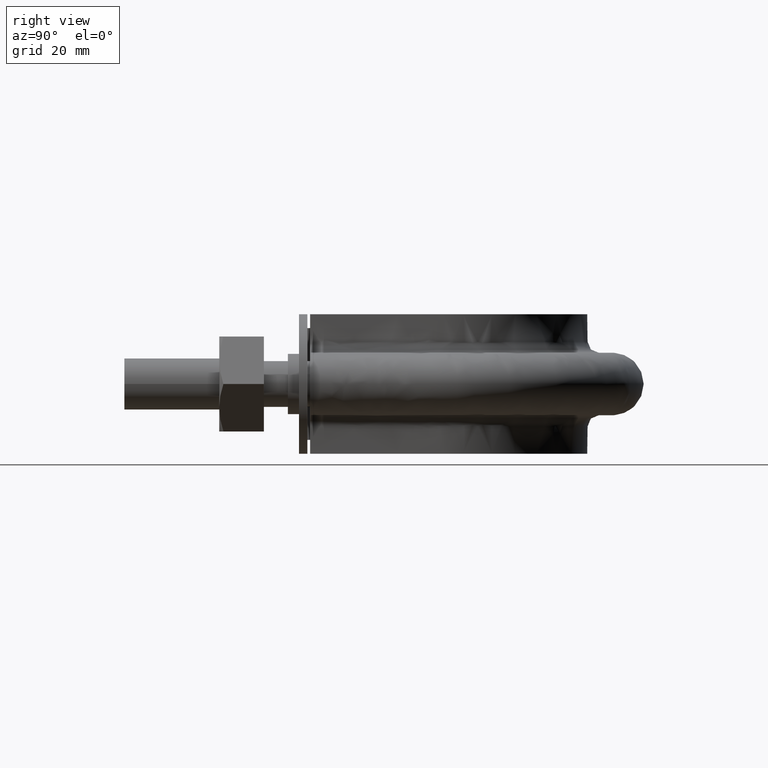
[diagram: clean part render]
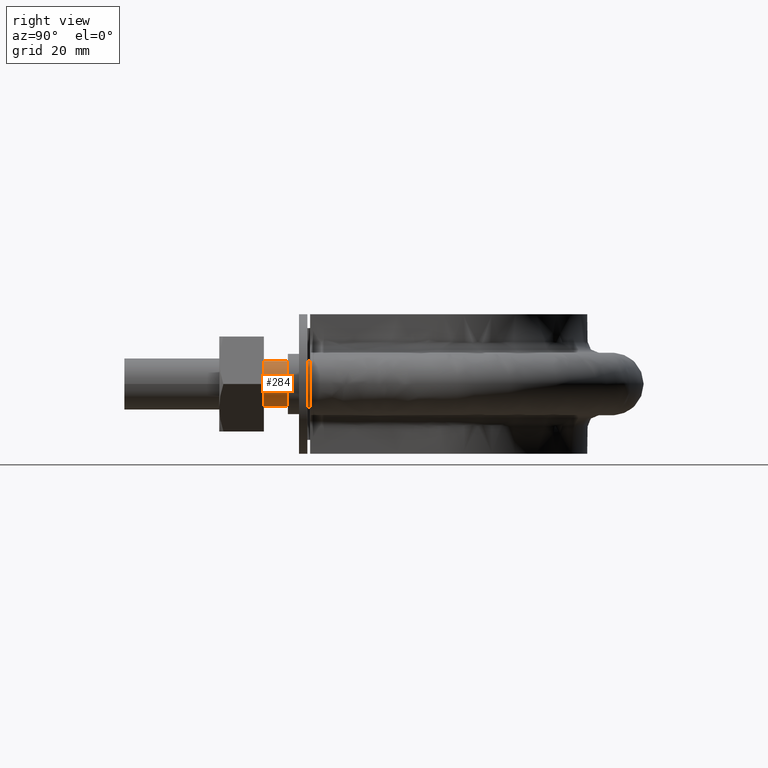
[diagram: same view with one face highlighted and labeled with its STEP entity id]
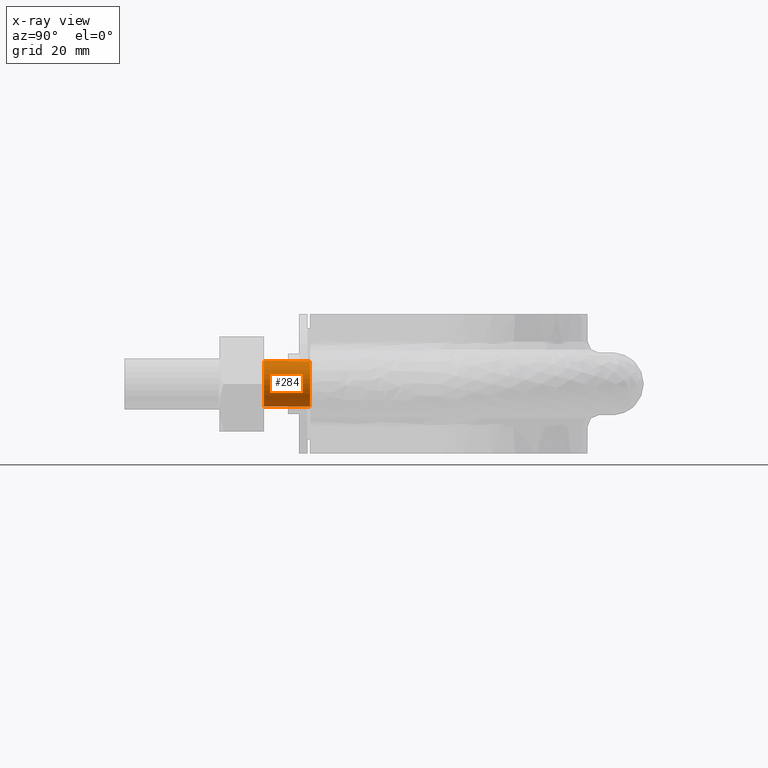
[diagram: x-ray of the same camera — body ghosted, the highlighted face saturated]
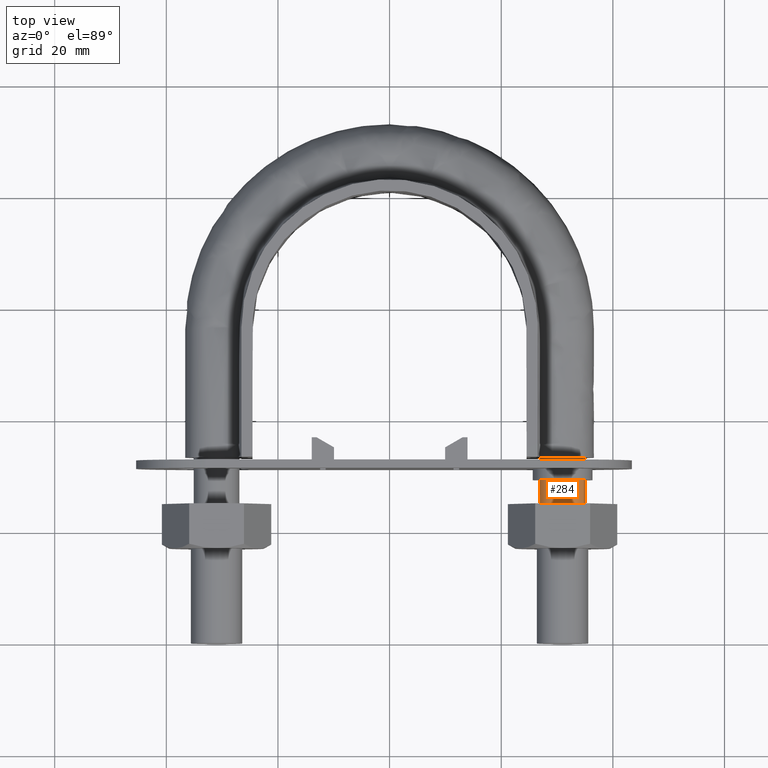
[diagram: same view with one face highlighted and labeled with its STEP entity id]
A machine part, right view. The second image highlights one B-rep face of the part: STEP entity #284.
The next image is the same camera in x-ray: the body ghosted, the highlighted face saturated — about 0% of this face is hidden behind the body in this view.
A second angle (top view) of the same face is appended — the face is thin or edge-on in the first view.
In plain terms, the highlighted cylindrical surface (bore or boss wall) has radius 4.1 mm, axis along (0, 1, 0).
Its self-contained STEP definition (entity closure, byte-faithful):
#284 = ADVANCED_FACE( '', ( #420, #421 ), #422, .T. );
#420 = FACE_OUTER_BOUND( '', #1498, .T. );
#421 = FACE_OUTER_BOUND( '', #1499, .T. );
#422 = CYLINDRICAL_SURFACE( '', #1500, 4.10000000000000 );
#1498 = EDGE_LOOP( '', ( #1832, #1833, #1834, #1835, #1836, #1837, #1838 ) );
#1499 = EDGE_LOOP( '', ( #1839 ) );
#1500 = AXIS2_PLACEMENT_3D( '', #1840, #1841, #1842 );
#1832 = ORIENTED_EDGE( '', *, *, #2558, .T. );
#1833 = ORIENTED_EDGE( '', *, *, #2559, .T. );
#1834 = ORIENTED_EDGE( '', *, *, #2560, .T. );
#1835 = ORIENTED_EDGE( '', *, *, #2539, .T. );
#1836 = ORIENTED_EDGE( '', *, *, #2556, .T. );
#1837 = ORIENTED_EDGE( '', *, *, #2561, .T. );
#1838 = ORIENTED_EDGE( '', *, *, #2562, .T. );
#1839 = ORIENTED_EDGE( '', *, *, #2563, .T. );
#1840 = CARTESIAN_POINT( '', ( 31.0000000000000, 33.3000000000000, 1.03938464280674E-014 ) );
#1841 = DIRECTION( '', ( 2.44921270764475E-016, 1.00000000000000, 3.06151588455594E-016 ) );
#1842 = DIRECTION( '', ( 1.00000000000000, -2.44921270764475E-016, -3.74915180455534E-032 ) );
#2539 = EDGE_CURVE( '', #2791, #2792, #2793, .T. );
#2556 = EDGE_CURVE( '', #2792, #2810, #2817, .T. );
#2558 = EDGE_CURVE( '', #2806, #2804, #2820, .T. );
#2559 = EDGE_CURVE( '', #2804, #2802, #2821, .T. );
#2560 = EDGE_CURVE( '', #2802, #2791, #2822, .T. );
#2561 = EDGE_CURVE( '', #2810, #2808, #2823, .T. );
#2562 = EDGE_CURVE( '', #2808, #2806, #2824, .T. );
#2563 = EDGE_CURVE( '', #2825, #2825, #2826, .T. );
#2791 = VERTEX_POINT( '', #3377 );
#2792 = VERTEX_POINT( '', #3378 );
#2793 = CIRCLE( '', #3379, 4.10000000000000 );
#2802 = VERTEX_POINT( '', #3412 );
#2804 = VERTEX_POINT( '', #3417 );
#2806 = VERTEX_POINT( '', #3422 );
#2808 = VERTEX_POINT( '', #3427 );
#2810 = VERTEX_POINT( '', #3432 );
#2817 = CIRCLE( '', #3445, 4.10000000000000 );
#2820 = CIRCLE( '', #3448, 4.10000000000000 );
#2821 = CIRCLE( '', #3449, 4.10000000000000 );
#2822 = CIRCLE( '', #3450, 4.10000000000000 );
#2823 = CIRCLE( '', #3451, 4.10000000000000 );
#2824 = CIRCLE( '', #3452, 4.10000000000000 );
#2825 = VERTEX_POINT( '', #3453 );
#2826 = CIRCLE( '', #3454, 4.10000000000000 );
#3377 = CARTESIAN_POINT( '', ( 26.9000000000000, 33.3000000000000, -2.95212466993632E-013 ) );
#3378 = CARTESIAN_POINT( '', ( 28.4436918123816, 33.3000000000000, -3.20550907812087 ) );
#3379 = AXIS2_PLACEMENT_3D( '', #4023, #4024, #4025 );
#3412 = CARTESIAN_POINT( '', ( 28.4436918123793, 33.3000000000000, 3.20550907811897 ) );
#3417 = CARTESIAN_POINT( '', ( 31.9123358292210, 33.3000000000000, 3.99720443994545 ) );
#3422 = CARTESIAN_POINT( '', ( 34.6939723584001, 33.3000000000000, 1.77892333038165 ) );
#3427 = CARTESIAN_POINT( '', ( 34.6939723583997, 33.3000000000000, -1.77892333038239 ) );
#3432 = CARTESIAN_POINT( '', ( 31.9123358292213, 33.3000000000000, -3.99720443994539 ) );
#3445 = AXIS2_PLACEMENT_3D( '', #4032, #4033, #4034 );
#3448 = AXIS2_PLACEMENT_3D( '', #4038, #4039, #4040 );
#3449 = AXIS2_PLACEMENT_3D( '', #4041, #4042, #4043 );
#3450 = AXIS2_PLACEMENT_3D( '', #4044, #4045, #4046 );
#3451 = AXIS2_PLACEMENT_3D( '', #4047, #4048, #4049 );
#3452 = AXIS2_PLACEMENT_3D( '', #4050, #4051, #4052 );
#3453 = CARTESIAN_POINT( '', ( 31.0000000000000, 25.0000000000000, 4.10000000000001 ) );
#3454 = AXIS2_PLACEMENT_3D( '', #4053, #4054, #4055 );
#4023 = CARTESIAN_POINT( '', ( 31.0000000000000, 33.3000000000000, 1.03938464280674E-014 ) );
#4024 = DIRECTION( '', ( -2.44921270764475E-016, -1.00000000000000, -3.06151588455594E-016 ) );
#4025 = DIRECTION( '', ( 1.00000000000000, -2.44921270764475E-016, -3.16197804102265E-032 ) );
#4032 = CARTESIAN_POINT( '', ( 31.0000000000000, 33.3000000000000, 1.03938464280674E-014 ) );
#4033 = DIRECTION( '', ( -2.44921270764475E-016, -1.00000000000000, -3.06151588455594E-016 ) );
#4034 = DIRECTION( '', ( 1.00000000000000, -2.44921270764475E-016, -3.16197804102265E-032 ) );
#4038 = CARTESIAN_POINT( '', ( 31.0000000000000, 33.3000000000000, 1.03938464280674E-014 ) );
#4039 = DIRECTION( '', ( -2.44921270764475E-016, -1.00000000000000, -3.06151588455594E-016 ) );
#4040 = DIRECTION( '', ( 1.00000000000000, -2.44921270764475E-016, -3.16197804102265E-032 ) );
#4041 = CARTESIAN_POINT( '', ( 31.0000000000000, 33.3000000000000, 1.03938464280674E-014 ) );
#4042 = DIRECTION( '', ( -2.44921270764475E-016, -1.00000000000000, -3.06151588455594E-016 ) );
#4043 = DIRECTION( '', ( 1.00000000000000, -2.44921270764475E-016, -3.16197804102265E-032 ) );
#4044 = CARTESIAN_POINT( '', ( 31.0000000000000, 33.3000000000000, 1.03938464280674E-014 ) );
#4045 = DIRECTION( '', ( -2.44921270764475E-016, -1.00000000000000, -3.06151588455594E-016 ) );
#4046 = DIRECTION( '', ( 1.00000000000000, -2.44921270764475E-016, -3.16197804102265E-032 ) );
#4047 = CARTESIAN_POINT( '', ( 31.0000000000000, 33.3000000000000, 1.03938464280674E-014 ) );
#4048 = DIRECTION( '', ( -2.44921270764475E-016, -1.00000000000000, -3.06151588455594E-016 ) );
#4049 = DIRECTION( '', ( 1.00000000000000, -2.44921270764475E-016, -3.16197804102265E-032 ) );
#4050 = CARTESIAN_POINT( '', ( 31.0000000000000, 33.3000000000000, 1.03938464280674E-014 ) );
#4051 = DIRECTION( '', ( -2.44921270764475E-016, -1.00000000000000, -3.06151588455594E-016 ) );
#4052 = DIRECTION( '', ( 1.00000000000000, -2.44921270764475E-016, -3.16197804102265E-032 ) );
#4053 = CARTESIAN_POINT( '', ( 31.0000000000000, 25.0000000000000, 7.85278824388599E-015 ) );
#4054 = DIRECTION( '', ( 2.44921270764475E-016, 1.00000000000000, 3.06151588455594E-016 ) );
#4055 = DIRECTION( '', ( -3.74915180455534E-032, -3.06151588455594E-016, 1.00000000000000 ) );